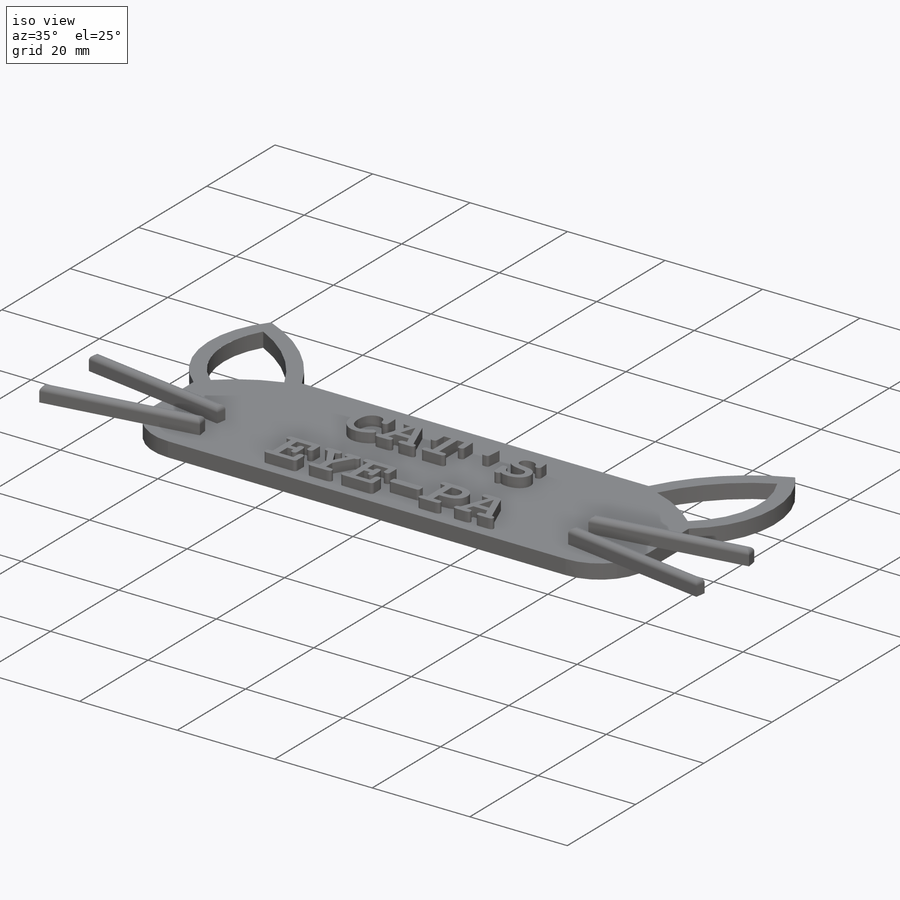
[diagram: iso view]
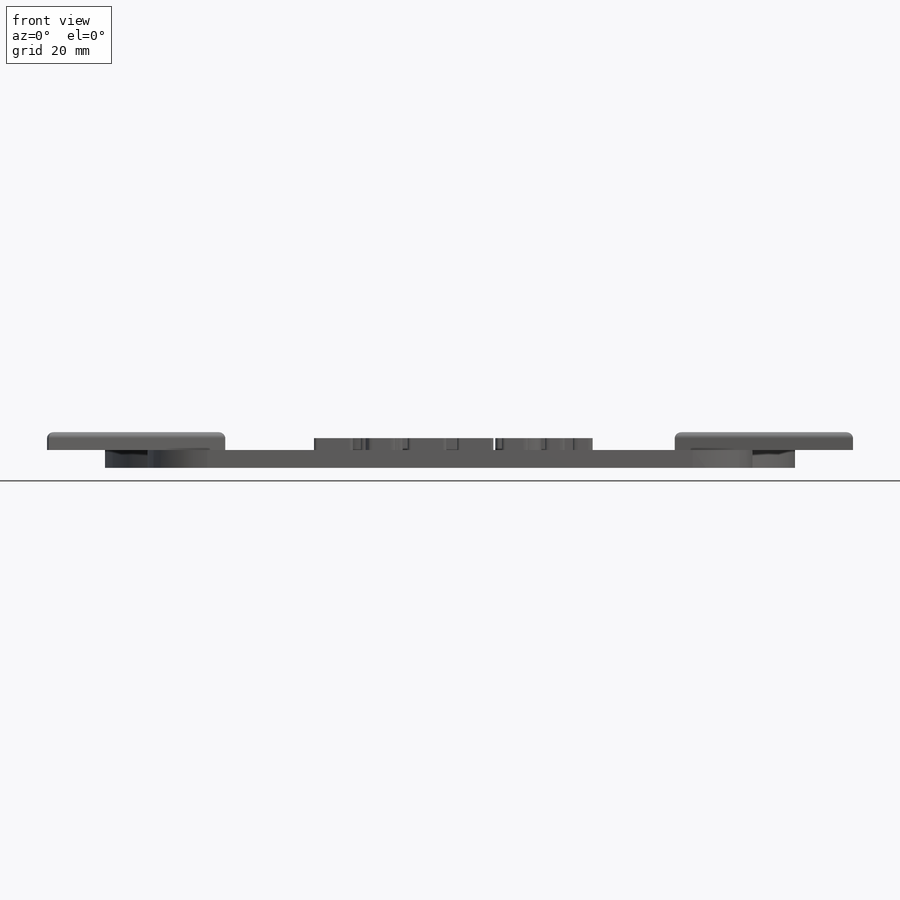
[diagram: front view]
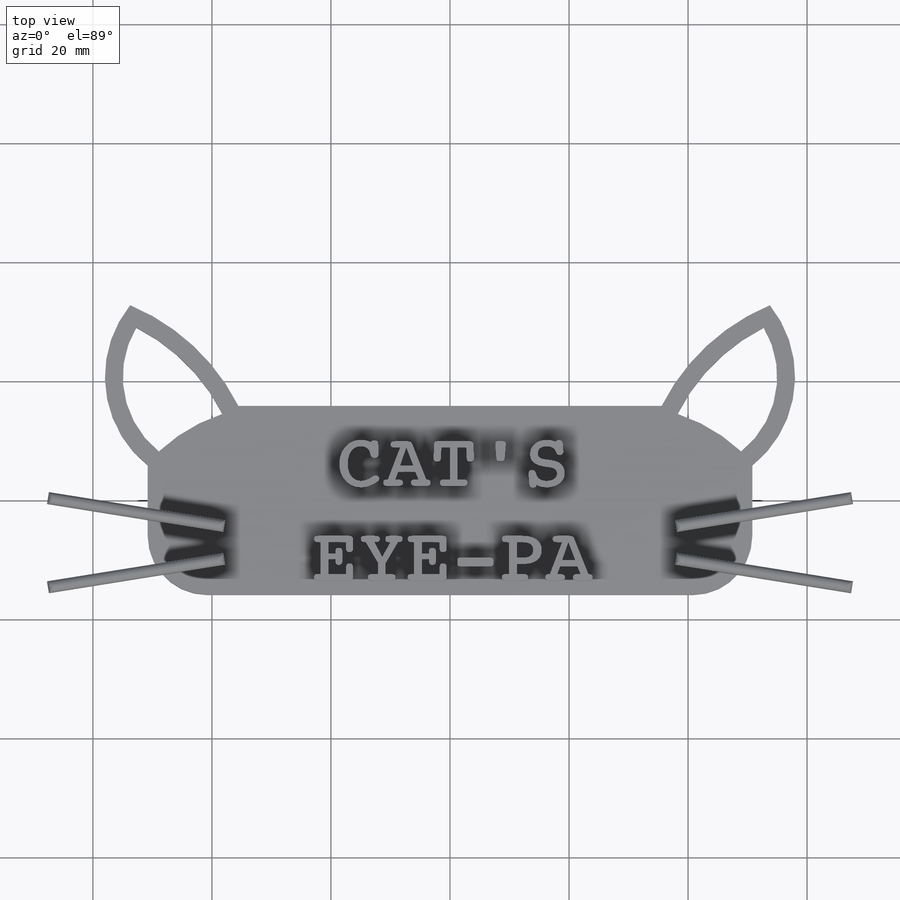
[diagram: top view]
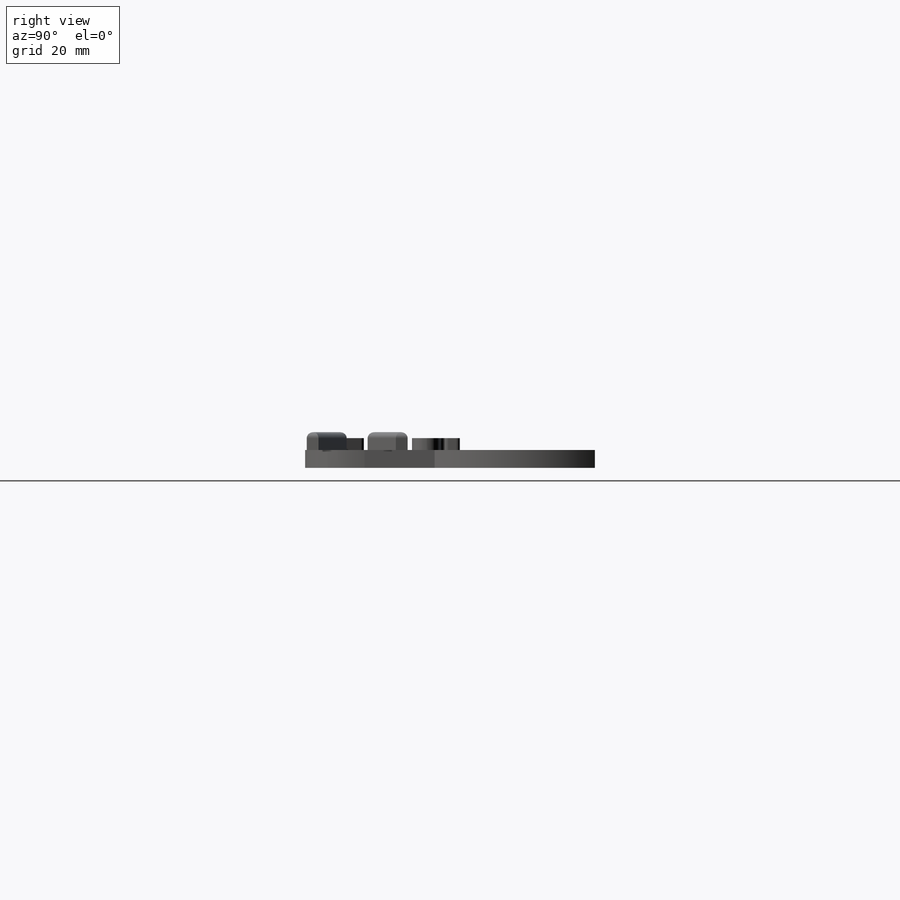
[diagram: right view]
SOLIDWORKS PART (.sldprt)
format: sldprt  version: not decoded by parser v0  size: 655,872 bytes
history: native  units: mm
features: sketch x4, extrude x3, plane x2, material x1, cut_extrude x1, fillet x1 (+13 scaffold rows collapsed)
feature tree (25):
  scaffold x13  (default folders/planes/origin — collapsed)
  material  "Material <not specified>"
  sketch  "Sketch1"  dims[c1.D3=10.0mm c1.D4=~24.272314mm c1.D1=101.6mm c1.D2=31.75mm c2.D3=3.0mm]
  extrude  "Boss-Extrude1"  Depth=3mm
  plane  "Plane1"  Offset=0mm
  sketch  "Sketch2"  dims[D1=13.5mm]
  extrude  "Boss-Extrude2"  Depth=2mm
  sketch  "Trough"  dims[D1=3.0mm D2=14.5mm]
  cut_extrude  "Cut-Extrude1"  Depth=2.25mm
  plane  "Whiskers Plane"  Offset=0mm
  sketch  "Whiskers"  dims[D1=2.0mm D2=30.0mm]
  extrude  "Boss-Extrude3"  Depth=3mm
  fillet  "Fillet1"  Radius=1mm
decode coverage: 9 of 9 modeling features carry decoded parameters
note: ~ marks probable driven/reference dimensions
note: suppression state not decoded; provenance and decode notes live in map.json
